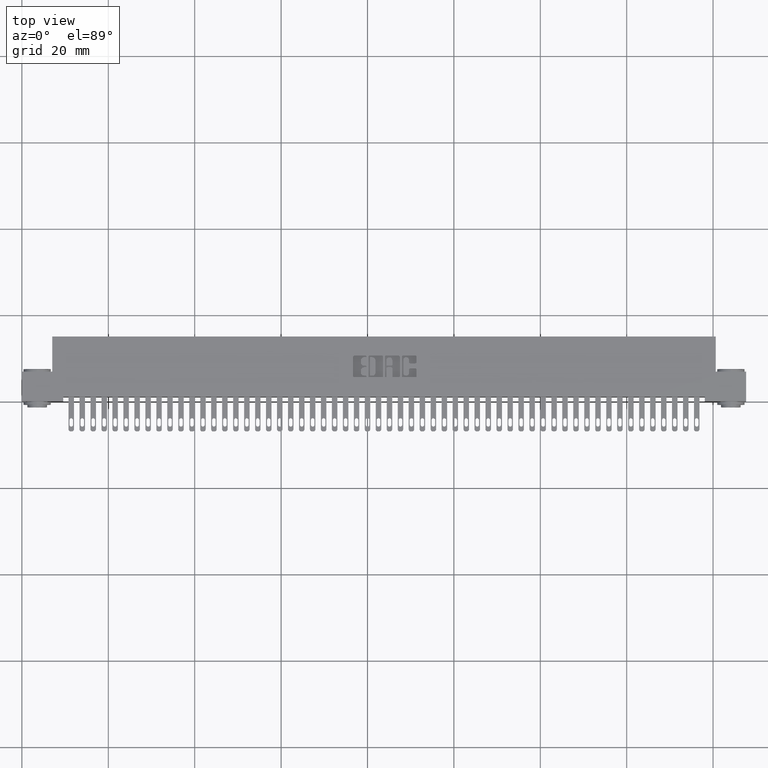
[diagram: clean part render]
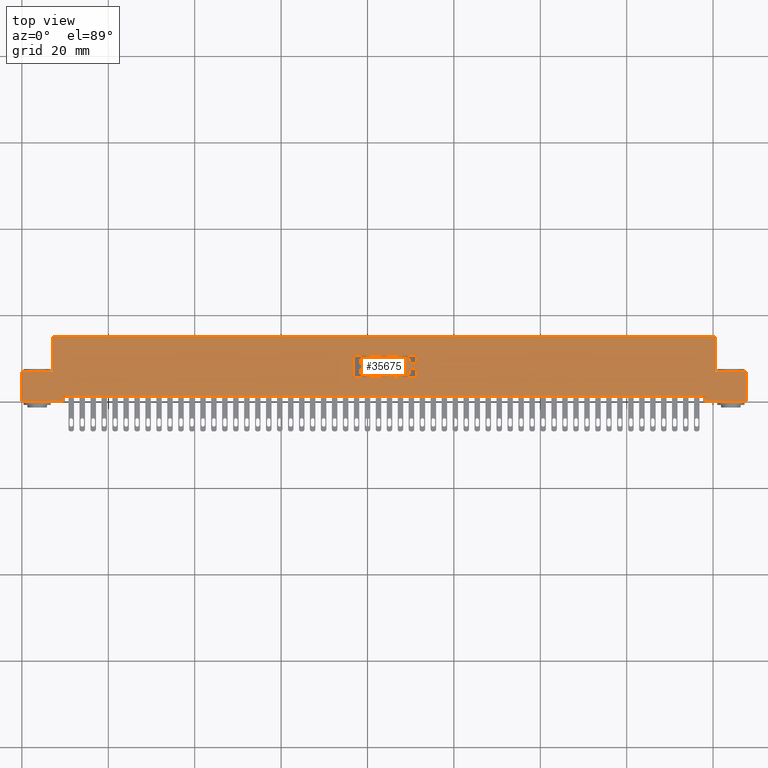
[diagram: same view with one face highlighted and labeled with its STEP entity id]
A machine part, top view. The second image highlights one B-rep face of the part: STEP entity #35675.
In plain terms, the highlighted planar face has unit normal (0, 0, -1).
Its self-contained STEP definition (entity closure, byte-faithful):
#32 = EDGE_CURVE ( 'NONE', #10878, #31877, #9913, .T. ) ;
#102 = CIRCLE ( 'NONE', #4530, 0.009815670203803066700 ) ;
#125 = CARTESIAN_POINT ( 'NONE',  ( -0.0000000000000000000, 0.2168432979619834600, 0.0000000000000000000 ) ) ;
#161 = VERTEX_POINT ( 'NONE', #7046 ) ;
#219 = CIRCLE ( 'NONE', #21924, 0.03141014465217440600 ) ;
#317 = AXIS2_PLACEMENT_3D ( 'NONE', #29773, #13194, #32537 ) ;
#363 = VERTEX_POINT ( 'NONE', #33381 ) ;
#391 = VECTOR ( 'NONE', #15224, 39.37007874015748100 ) ;
#439 = DIRECTION ( 'NONE',  ( -0.0000000000000000000, 0.0000000000000000000, 1.000000000000000000 ) ) ;
#461 = EDGE_CURVE ( 'NONE', #14462, #21891, #18146, .T. ) ;
#507 = EDGE_CURVE ( 'NONE', #5336, #21130, #16382, .T. ) ;
#676 = EDGE_CURVE ( 'NONE', #4527, #28101, #18547, .T. ) ;
#698 = LINE ( 'NONE', #10340, #21822 ) ;
#708 = DIRECTION ( 'NONE',  ( 1.000000000000000000, 0.0000000000000000000, 0.0000000000000000000 ) ) ;
#750 = DIRECTION ( 'NONE',  ( 1.000000000000000000, 0.0000000000000000000, 0.0000000000000000000 ) ) ;
#784 = VERTEX_POINT ( 'NONE', #8437 ) ;
#785 = DIRECTION ( 'NONE',  ( -0.0000000000000000000, 0.0000000000000000000, 1.000000000000000000 ) ) ;
#864 = ORIENTED_EDGE ( 'NONE', *, *, #507, .F. ) ;
#868 = VECTOR ( 'NONE', #28849, 39.37007874015748100 ) ;
#938 = DIRECTION ( 'NONE',  ( 1.000000000000000000, 0.0000000000000000000, 0.0000000000000000000 ) ) ;
#950 = CARTESIAN_POINT ( 'NONE',  ( -1.562019070573073200E-015, 0.2168432979619634200, 0.0000000000000000000 ) ) ;
#972 = CARTESIAN_POINT ( 'NONE',  ( 3.281595618367863000, 0.2168432979619834600, 0.0000000000000000000 ) ) ;
#1132 = LINE ( 'NONE', #17763, #21409 ) ;
#1137 = CARTESIAN_POINT ( 'NONE',  ( 3.318404381632128700, 0.4131567020380068100, 0.0000000000000000000 ) ) ;
#1193 = VERTEX_POINT ( 'NONE', #25974 ) ;
#1197 = DIRECTION ( 'NONE',  ( -0.0000000000000000000, 0.0000000000000000000, 1.000000000000000000 ) ) ;
#1198 = CIRCLE ( 'NONE', #7823, 0.009815670203787768200 ) ;
#1279 = AXIS2_PLACEMENT_3D ( 'NONE', #9189, #28533, #11956 ) ;
#1466 = ORIENTED_EDGE ( 'NONE', *, *, #20374, .F. ) ;
#1611 = EDGE_CURVE ( 'NONE', #2077, #9539, #11955, .T. ) ;
#1721 = VECTOR ( 'NONE', #22898, 39.37007874015748100 ) ;
#1754 = CARTESIAN_POINT ( 'NONE',  ( 3.088226915352910900, 0.3680046191005200700, 0.0000000000000000000 ) ) ;
#1900 = AXIS2_PLACEMENT_3D ( 'NONE', #3513, #22822, #6262 ) ;
#2025 = VERTEX_POINT ( 'NONE', #9933 ) ;
#2077 = VERTEX_POINT ( 'NONE', #4045 ) ;
#2271 = CARTESIAN_POINT ( 'NONE',  ( 3.308588711428332100, 0.0000000000000000000, 0.0000000000000000000 ) ) ;
#2274 = CARTESIAN_POINT ( 'NONE',  ( 3.119637060005085300, 0.3532811137948586000, 0.0000000000000000000 ) ) ;
#2289 = ORIENTED_EDGE ( 'NONE', *, *, #4653, .F. ) ;
#2318 = ORIENTED_EDGE ( 'NONE', *, *, #18451, .F. ) ;
#2352 = CARTESIAN_POINT ( 'NONE',  ( 3.586862961706168000, 0.3439562271012338000, 0.0000000000000000000 ) ) ;
#2528 = LINE ( 'NONE', #24207, #30997 ) ;
#2551 = ORIENTED_EDGE ( 'NONE', *, *, #12868, .T. ) ;
#2573 = EDGE_CURVE ( 'NONE', #30370, #4404, #23994, .T. ) ;
#2687 = DIRECTION ( 'NONE',  ( -1.000000000000000000, -1.189163988687022500E-013, 0.0000000000000000000 ) ) ;
#2701 = FACE_BOUND ( 'NONE', #27532, .T. ) ;
#2705 = DIRECTION ( 'NONE',  ( 0.0000000000000000000, 1.000000000000000000, -0.0000000000000000000 ) ) ;
#2757 = AXIS2_PLACEMENT_3D ( 'NONE', #27727, #11144, #30500 ) ;
#2798 = CARTESIAN_POINT ( 'NONE',  ( 3.537293827176968300, 0.2963502266127577800, 0.0000000000000000000 ) ) ;
#2815 = VECTOR ( 'NONE', #23390, 39.37007874015748100 ) ;
#2922 = CARTESIAN_POINT ( 'NONE',  ( 0.0000000000000000000, 0.5899999999999999700, 0.0000000000000000000 ) ) ;
#2934 = VECTOR ( 'NONE', #19479, 39.37007874015748100 ) ;
#2988 = EDGE_CURVE ( 'NONE', #19887, #5496, #16621, .T. ) ;
#3005 = ORIENTED_EDGE ( 'NONE', *, *, #5965, .F. ) ;
#3093 = LINE ( 'NONE', #25655, #9511 ) ;
#3228 = CIRCLE ( 'NONE', #6939, 0.009815670203805252500 ) ;
#3267 = LINE ( 'NONE', #4509, #17962 ) ;
#3364 = AXIS2_PLACEMENT_3D ( 'NONE', #30779, #14215, #33551 ) ;
#3429 = VECTOR ( 'NONE', #28614, 39.37007874015748100 ) ;
#3473 = AXIS2_PLACEMENT_3D ( 'NONE', #15401, #15333, #15291 ) ;
#3513 = CARTESIAN_POINT ( 'NONE',  ( 3.434229290037011900, 0.2266589681657811300, 0.0000000000000000000 ) ) ;
#3532 = CARTESIAN_POINT ( 'NONE',  ( 3.434229290037015000, 0.4131567020380068100, 0.0000000000000000000 ) ) ;
#3649 = EDGE_CURVE ( 'NONE', #2025, #18570, #30842, .T. ) ;
#3657 = LINE ( 'NONE', #24203, #2815 ) ;
#3677 = DIRECTION ( 'NONE',  ( -0.0000000000000000000, 0.0000000000000000000, 1.000000000000000000 ) ) ;
#3690 = CIRCLE ( 'NONE', #21292, 0.006870969142663458500 ) ;
#3697 = EDGE_CURVE ( 'NONE', #12853, #17395, #20905, .T. ) ;
#3736 = CARTESIAN_POINT ( 'NONE',  ( 3.365028815100189300, 0.3081290308573500500, 0.0000000000000000000 ) ) ;
#3788 = CARTESIAN_POINT ( 'NONE',  ( 0.0000000000000000000, 0.0000000000000000000, 0.0000000000000000000 ) ) ;
#3810 = LINE ( 'NONE', #17214, #24962 ) ;
#3931 = CARTESIAN_POINT ( 'NONE',  ( 3.155955039759170200, 0.2266589681657902000, 0.0000000000000000000 ) ) ;
#3941 = CIRCLE ( 'NONE', #7260, 0.009815670203840767500 ) ;
#3977 = VERTEX_POINT ( 'NONE', #11832 ) ;
#3995 = CARTESIAN_POINT ( 'NONE',  ( 0.0000000000000000000, 0.0000000000000000000, 0.0000000000000000000 ) ) ;
#4045 = CARTESIAN_POINT ( 'NONE',  ( 3.474964321382819900, 0.2568421540424532500, 0.0000000000000000000 ) ) ;
#4111 = VECTOR ( 'NONE', #20906, 39.37007874015748100 ) ;
#4168 = VECTOR ( 'NONE', #5306, 39.37007874015748100 ) ;
#4239 = CARTESIAN_POINT ( 'NONE',  ( -2.134256245050205600E-018, 0.2699999999999999600, 0.0000000000000000000 ) ) ;
#4311 = VERTEX_POINT ( 'NONE', #27571 ) ;
#4331 = VECTOR ( 'NONE', #6753, 39.37007874015748100 ) ;
#4400 = CARTESIAN_POINT ( 'NONE',  ( 3.586862961706169800, 0.4131567020380512700, 0.0000000000000000000 ) ) ;
#4404 = VERTEX_POINT ( 'NONE', #17977 ) ;
#4509 = CARTESIAN_POINT ( 'NONE',  ( 3.474964321382819900, 0.0000000000000000000, 0.0000000000000000000 ) ) ;
#4527 = VERTEX_POINT ( 'NONE', #35201 ) ;
#4530 = AXIS2_PLACEMENT_3D ( 'NONE', #17723, #1197, #20468 ) ;
#4611 = ORIENTED_EDGE ( 'NONE', *, *, #9172, .F. ) ;
#4633 = CARTESIAN_POINT ( 'NONE',  ( 3.155955039759170200, 0.4033410318342103800, 0.0000000000000000000 ) ) ;
#4653 = EDGE_CURVE ( 'NONE', #26959, #23649, #15204, .T. ) ;
#4655 = ORIENTED_EDGE ( 'NONE', *, *, #7321, .F. ) ;
#4724 = ORIENTED_EDGE ( 'NONE', *, *, #7126, .F. ) ;
#4747 = AXIS2_PLACEMENT_3D ( 'NONE', #25888, #9298, #28648 ) ;
#4809 = EDGE_CURVE ( 'NONE', #18570, #34790, #16114, .T. ) ;
#4817 = VECTOR ( 'NONE', #18066, 39.37007874015748100 ) ;
#4928 = DIRECTION ( 'NONE',  ( -0.0000000000000000000, 0.0000000000000000000, 1.000000000000000000 ) ) ;
#5022 = DIRECTION ( 'NONE',  ( 0.0000000000000000000, 1.000000000000000000, -0.0000000000000000000 ) ) ;
#5024 = DIRECTION ( 'NONE',  ( 1.000000000000000000, 0.0000000000000000000, 0.0000000000000000000 ) ) ;
#5119 = EDGE_CURVE ( 'NONE', #18307, #19537, #5724, .T. ) ;
#5127 = ORIENTED_EDGE ( 'NONE', *, *, #32081, .F. ) ;
#5165 = AXIS2_PLACEMENT_3D ( 'NONE', #27286, #10685, #30035 ) ;
#5166 = CIRCLE ( 'NONE', #3364, 0.03141014465218205200 ) ;
#5206 = AXIS2_PLACEMENT_3D ( 'NONE', #9080, #7144, #6266 ) ;
#5257 = AXIS2_PLACEMENT_3D ( 'NONE', #24282, #31122, #9208 ) ;
#5306 = DIRECTION ( 'NONE',  ( 1.000000000000000000, 0.0000000000000000000, 0.0000000000000000000 ) ) ;
#5336 = VERTEX_POINT ( 'NONE', #4633 ) ;
#5339 = VECTOR ( 'NONE', #11493, 39.37007874015748100 ) ;
#5496 = VERTEX_POINT ( 'NONE', #32250 ) ;
#5499 = CIRCLE ( 'NONE', #1279, 0.009815670203805798900 ) ;
#5536 = ORIENTED_EDGE ( 'NONE', *, *, #33035, .T. ) ;
#5723 = ORIENTED_EDGE ( 'NONE', *, *, #20830, .F. ) ;
#5724 = LINE ( 'NONE', #19840, #19540 ) ;
#5786 = CARTESIAN_POINT ( 'NONE',  ( 3.332146319917451500, 0.3081290308573488800, 0.0000000000000000000 ) ) ;
#5900 = CARTESIAN_POINT ( 'NONE',  ( 3.365028815100189300, 0.2983133606535530700, 0.0000000000000000000 ) ) ;
#5965 = EDGE_CURVE ( 'NONE', #22378, #14290, #33047, .T. ) ;
#5996 = CARTESIAN_POINT ( 'NONE',  ( 3.028842110619939500, 0.4131567020380330100, 0.0000000000000000000 ) ) ;
#6128 = VECTOR ( 'NONE', #10914, 39.37007874015748100 ) ;
#6222 = CARTESIAN_POINT ( 'NONE',  ( -0.0000000000000000000, 0.2168432979619834600, 0.0000000000000000000 ) ) ;
#6262 = DIRECTION ( 'NONE',  ( 1.000000000000000000, 0.0000000000000000000, 0.0000000000000000000 ) ) ;
#6266 = DIRECTION ( 'NONE',  ( 1.000000000000000000, 0.0000000000000000000, 0.0000000000000000000 ) ) ;
#6296 = CARTESIAN_POINT ( 'NONE',  ( 3.461222383097459800, 0.4033410318342103800, 0.0000000000000000000 ) ) ;
#6316 = CIRCLE ( 'NONE', #27489, 0.009815670203796511200 ) ;
#6409 = CARTESIAN_POINT ( 'NONE',  ( 3.471038053301266600, 0.2266589681657902000, 0.0000000000000000000 ) ) ;
#6429 = VERTEX_POINT ( 'NONE', #2352 ) ;
#6535 = ORIENTED_EDGE ( 'NONE', *, *, #31876, .F. ) ;
#6638 = EDGE_CURVE ( 'NONE', #22788, #2025, #3690, .T. ) ;
#6718 = VERTEX_POINT ( 'NONE', #13065 ) ;
#6746 = DIRECTION ( 'NONE',  ( 0.0000000000000000000, -1.000000000000000000, 0.0000000000000000000 ) ) ;
#6753 = DIRECTION ( 'NONE',  ( 1.000000000000000000, 0.0000000000000000000, 0.0000000000000000000 ) ) ;
#6755 = ORIENTED_EDGE ( 'NONE', *, *, #34495, .F. ) ;
#6787 = ORIENTED_EDGE ( 'NONE', *, *, #20291, .F. ) ;
#6939 = AXIS2_PLACEMENT_3D ( 'NONE', #33994, #17435, #938 ) ;
#6949 = ORIENTED_EDGE ( 'NONE', *, *, #16211, .T. ) ;
#6959 = EDGE_CURVE ( 'NONE', #19537, #27947, #29172, .T. ) ;
#6991 = DIRECTION ( 'NONE',  ( 1.000000000000000000, 0.0000000000000000000, -6.123233995736768500E-017 ) ) ;
#6999 = CARTESIAN_POINT ( 'NONE',  ( 3.133133606535336600, 0.2237142671046482000, 0.0000000000000000000 ) ) ;
#7001 = VERTEX_POINT ( 'NONE', #28421 ) ;
#7046 = CARTESIAN_POINT ( 'NONE',  ( 3.308588711428332100, 0.2237142671046482000, 0.0000000000000000000 ) ) ;
#7126 = EDGE_CURVE ( 'NONE', #26998, #9539, #3657, .T. ) ;
#7134 = ORIENTED_EDGE ( 'NONE', *, *, #23135, .F. ) ;
#7144 = DIRECTION ( 'NONE',  ( -0.0000000000000000000, 0.0000000000000000000, 1.000000000000000000 ) ) ;
#7159 = CARTESIAN_POINT ( 'NONE',  ( 3.119637060005085300, 0.3218709691426841500, 0.0000000000000000000 ) ) ;
#7168 = CARTESIAN_POINT ( 'NONE',  ( 3.165770709963011200, 0.4033410318342103800, 0.0000000000000000000 ) ) ;
#7214 = CARTESIAN_POINT ( 'NONE',  ( 0.0000000000000000000, 0.5899999999999999700, 0.0000000000000000000 ) ) ;
#7260 = AXIS2_PLACEMENT_3D ( 'NONE', #7168, #26524, #9922 ) ;
#7300 = CARTESIAN_POINT ( 'NONE',  ( 3.444044960240807600, 0.4033410318342012200, 0.0000000000000000000 ) ) ;
#7321 = EDGE_CURVE ( 'NONE', #13120, #9375, #26993, .T. ) ;
#7329 = EDGE_CURVE ( 'NONE', #8424, #12466, #10506, .T. ) ;
#7473 = ORIENTED_EDGE ( 'NONE', *, *, #32, .T. ) ;
#7486 = CIRCLE ( 'NONE', #4747, 0.006870969142662365600 ) ;
#7711 = CARTESIAN_POINT ( 'NONE',  ( 3.461222383097459800, 0.2266589681657902000, 0.0000000000000000000 ) ) ;
#7758 = CARTESIAN_POINT ( 'NONE',  ( 3.291411288571670600, 0.4033410318342103800, 0.0000000000000000000 ) ) ;
#7823 = AXIS2_PLACEMENT_3D ( 'NONE', #17275, #785, #20038 ) ;
#7985 = DIRECTION ( 'NONE',  ( -1.000000000000000000, -3.530861605407645300E-014, 0.0000000000000000000 ) ) ;
#8091 = DIRECTION ( 'NONE',  ( -0.0000000000000000000, -1.000000000000000000, -0.0000000000000000000 ) ) ;
#8123 = VERTEX_POINT ( 'NONE', #33587 ) ;
#8139 = CARTESIAN_POINT ( 'NONE',  ( 6.600000000000001400, 0.2699999999999999600, 0.0000000000000000000 ) ) ;
#8148 = LINE ( 'NONE', #12162, #868 ) ;
#8338 = ORIENTED_EDGE ( 'NONE', *, *, #29607, .F. ) ;
#8424 = VERTEX_POINT ( 'NONE', #23052 ) ;
#8427 = VECTOR ( 'NONE', #30869, 39.37007874015748100 ) ;
#8437 = CARTESIAN_POINT ( 'NONE',  ( 3.133133606415415600, 0.2305852362473104800, 0.0000000000000000000 ) ) ;
#8461 = VECTOR ( 'NONE', #10088, 39.37007874015748100 ) ;
#8500 = VERTEX_POINT ( 'NONE', #19921 ) ;
#8510 = EDGE_LOOP ( 'NONE', ( #11552, #4655, #13904, #28275, #15279, #13867, #14077, #14744, #20942, #14926, #33336, #8675, #25556, #2289, #29128, #30847, #30904, #7134, #13311, #14073, #24804 ) ) ;
#8553 = CIRCLE ( 'NONE', #16193, 0.02625691779517394200 ) ;
#8557 = DIRECTION ( 'NONE',  ( 1.000000000000000000, 0.0000000000000000000, 0.0000000000000000000 ) ) ;
#8652 = DIRECTION ( 'NONE',  ( 1.000000000000000000, 0.0000000000000000000, 0.0000000000000000000 ) ) ;
#8675 = ORIENTED_EDGE ( 'NONE', *, *, #25261, .F. ) ;
#8717 = CARTESIAN_POINT ( 'NONE',  ( 3.374844485303986300, 0.0000000000000000000, 0.0000000000000000000 ) ) ;
#9009 = LINE ( 'NONE', #6222, #1721 ) ;
#9080 = CARTESIAN_POINT ( 'NONE',  ( 3.133133606535352600, 0.4062857328953865500, 0.0000000000000000000 ) ) ;
#9172 = EDGE_CURVE ( 'NONE', #1193, #8424, #3093, .T. ) ;
#9189 = CARTESIAN_POINT ( 'NONE',  ( 3.028842110619923500, 0.2266589681657902000, 0.0000000000000000000 ) ) ;
#9193 = DIRECTION ( 'NONE',  ( 1.000000000000000000, 0.0000000000000000000, 0.0000000000000000000 ) ) ;
#9208 = DIRECTION ( 'NONE',  ( 1.000000000000000000, 0.0000000000000000000, 0.0000000000000000000 ) ) ;
#9242 = CARTESIAN_POINT ( 'NONE',  ( 6.323000000000002200, 0.2699999999999999600, -7.573828129326808200E-016 ) ) ;
#9249 = ORIENTED_EDGE ( 'NONE', *, *, #24466, .F. ) ;
#9298 = DIRECTION ( 'NONE',  ( -0.0000000000000000000, 0.0000000000000000000, 1.000000000000000000 ) ) ;
#9375 = VERTEX_POINT ( 'NONE', #1754 ) ;
#9447 = CARTESIAN_POINT ( 'NONE',  ( 0.0000000000000000000, 0.3218709691426841500, 0.0000000000000000000 ) ) ;
#9511 = VECTOR ( 'NONE', #33991, 39.37007874015748100 ) ;
#9539 = VERTEX_POINT ( 'NONE', #18859 ) ;
#9555 = DIRECTION ( 'NONE',  ( -1.000000000000000000, 0.0000000000000000000, 0.0000000000000000000 ) ) ;
#9649 = EDGE_CURVE ( 'NONE', #32222, #19342, #16849, .T. ) ;
#9673 = ORIENTED_EDGE ( 'NONE', *, *, #17282, .T. ) ;
#9767 = DIRECTION ( 'NONE',  ( 1.000000000000000000, 0.0000000000000000000, 0.0000000000000000000 ) ) ;
#9882 = CARTESIAN_POINT ( 'NONE',  ( 3.028842110619939500, 0.4033410318342103800, 0.0000000000000000000 ) ) ;
#9904 = VECTOR ( 'NONE', #24265, 39.37007874015748100 ) ;
#9913 = LINE ( 'NONE', #31328, #30249 ) ;
#9918 = ORIENTED_EDGE ( 'NONE', *, *, #33356, .F. ) ;
#9922 = DIRECTION ( 'NONE',  ( 1.000000000000000000, 0.0000000000000000000, 0.0000000000000000000 ) ) ;
#9933 = CARTESIAN_POINT ( 'NONE',  ( 3.140004575677974400, 0.3150000000000206000, 0.0000000000000000000 ) ) ;
#9937 = CIRCLE ( 'NONE', #13054, 0.03141014465221592800 ) ;
#9980 = FACE_OUTER_BOUND ( 'NONE', #34735, .T. ) ;
#10054 = CARTESIAN_POINT ( 'NONE',  ( 6.600000000000001400, 0.0000000000000000000, 0.0000000000000000000 ) ) ;
#10061 = ORIENTED_EDGE ( 'NONE', *, *, #34014, .F. ) ;
#10088 = DIRECTION ( 'NONE',  ( -0.0000000000000000000, -1.000000000000000000, -0.0000000000000000000 ) ) ;
#10091 = AXIS2_PLACEMENT_3D ( 'NONE', #12446, #31769, #15227 ) ;
#10263 = ORIENTED_EDGE ( 'NONE', *, *, #14839, .F. ) ;
#10297 = DIRECTION ( 'NONE',  ( 0.0000000000000000000, -1.000000000000000000, 0.0000000000000000000 ) ) ;
#10326 = EDGE_CURVE ( 'NONE', #13761, #27235, #16365, .T. ) ;
#10340 = CARTESIAN_POINT ( 'NONE',  ( 3.596678631909941500, 0.0000000000000000000, 0.0000000000000000000 ) ) ;
#10506 = LINE ( 'NONE', #17102, #24354 ) ;
#10668 = ORIENTED_EDGE ( 'NONE', *, *, #7329, .F. ) ;
#10685 = DIRECTION ( 'NONE',  ( -0.0000000000000000000, 0.0000000000000000000, 1.000000000000000000 ) ) ;
#10873 = VERTEX_POINT ( 'NONE', #10054 ) ;
#10878 = VERTEX_POINT ( 'NONE', #7300 ) ;
#10914 = DIRECTION ( 'NONE',  ( 1.000000000000000000, 7.203446383881635600E-015, 0.0000000000000000000 ) ) ;
#10976 = VERTEX_POINT ( 'NONE', #7758 ) ;
#11134 = DIRECTION ( 'NONE',  ( -0.0000000000000000000, 0.0000000000000000000, 1.000000000000000000 ) ) ;
#11144 = DIRECTION ( 'NONE',  ( -0.0000000000000000000, 0.0000000000000000000, 1.000000000000000000 ) ) ;
#11181 = CARTESIAN_POINT ( 'NONE',  ( 3.133133606415389800, 0.3081290308573571000, 0.0000000000000000000 ) ) ;
#11334 = EDGE_CURVE ( 'NONE', #24079, #26959, #5499, .T. ) ;
#11343 = CARTESIAN_POINT ( 'NONE',  ( 3.374844485303986300, 0.2266589681657880900, 0.0000000000000000000 ) ) ;
#11493 = DIRECTION ( 'NONE',  ( 0.0000000000000000000, 1.000000000000000000, -0.0000000000000000000 ) ) ;
#11552 = ORIENTED_EDGE ( 'NONE', *, *, #27034, .T. ) ;
#11556 = EDGE_LOOP ( 'NONE', ( #9918, #10263, #11951, #13352, #15656, #26905, #31730, #4724, #6535, #9249, #3005, #18421, #22302, #22756, #30418, #31573, #23955, #35159, #19425, #12900 ) ) ;
#11636 = LINE ( 'NONE', #15956, #9904 ) ;
#11832 = CARTESIAN_POINT ( 'NONE',  ( 3.281595618367897600, 0.4131567020380512700, 0.0000000000000000000 ) ) ;
#11876 = DIRECTION ( 'NONE',  ( 1.000000000000000000, 0.0000000000000000000, 0.0000000000000000000 ) ) ;
#11951 = ORIENTED_EDGE ( 'NONE', *, *, #6959, .F. ) ;
#11955 = CIRCLE ( 'NONE', #22338, 0.02625691779518049900 ) ;
#11956 = DIRECTION ( 'NONE',  ( 1.000000000000000000, 0.0000000000000000000, 0.0000000000000000000 ) ) ;
#12020 = DIRECTION ( 'NONE',  ( -0.0000000000000000000, 1.000000000000000000, -0.0000000000000000000 ) ) ;
#12160 = CARTESIAN_POINT ( 'NONE',  ( 3.133133606535352600, 0.4131567020380330100, 0.0000000000000000000 ) ) ;
#12162 = CARTESIAN_POINT ( 'NONE',  ( 6.600000000000001400, 0.5899999999999999700, 0.0000000000000000000 ) ) ;
#12191 = EDGE_CURVE ( 'NONE', #12243, #13761, #20352, .T. ) ;
#12208 = DIRECTION ( 'NONE',  ( -0.0000000000000000000, 0.0000000000000000000, 1.000000000000000000 ) ) ;
#12242 = EDGE_CURVE ( 'NONE', #18221, #5336, #3941, .T. ) ;
#12243 = VERTEX_POINT ( 'NONE', #4400 ) ;
#12248 = CIRCLE ( 'NONE', #12278, 0.009815670203806891800 ) ;
#12278 = AXIS2_PLACEMENT_3D ( 'NONE', #33761, #17191, #708 ) ;
#12332 = DIRECTION ( 'NONE',  ( -0.0000000000000000000, 0.0000000000000000000, 1.000000000000000000 ) ) ;
#12364 = LINE ( 'NONE', #19055, #4168 ) ;
#12422 = CARTESIAN_POINT ( 'NONE',  ( 3.586862961706135200, 0.2266589681657902000, 0.0000000000000000000 ) ) ;
#12443 = CARTESIAN_POINT ( 'NONE',  ( -0.0000000000000000000, 0.3439562271012338600, 0.0000000000000000000 ) ) ;
#12446 = CARTESIAN_POINT ( 'NONE',  ( 3.434229290037012800, 0.4033410318342106600, 0.0000000000000000000 ) ) ;
#12466 = VERTEX_POINT ( 'NONE', #32751 ) ;
#12470 = EDGE_CURVE ( 'NONE', #27942, #15283, #18205, .T. ) ;
#12598 = AXIS2_PLACEMENT_3D ( 'NONE', #33808, #17240, #750 ) ;
#12681 = DIRECTION ( 'NONE',  ( 1.000000000000000000, 0.0000000000000000000, 0.0000000000000000000 ) ) ;
#12697 = LINE ( 'NONE', #31943, #19178 ) ;
#12727 = LINE ( 'NONE', #2271, #26591 ) ;
#12810 = CARTESIAN_POINT ( 'NONE',  ( 3.322330649713648200, 0.2237142671046482000, 0.0000000000000000000 ) ) ;
#12853 = VERTEX_POINT ( 'NONE', #1137 ) ;
#12868 = EDGE_CURVE ( 'NONE', #8500, #12466, #26386, .T. ) ;
#12900 = ORIENTED_EDGE ( 'NONE', *, *, #2988, .F. ) ;
#12902 = AXIS2_PLACEMENT_3D ( 'NONE', #15769, #35116, #18571 ) ;
#12971 = EDGE_CURVE ( 'NONE', #18860, #32088, #31961, .T. ) ;
#13017 = ORIENTED_EDGE ( 'NONE', *, *, #30251, .T. ) ;
#13054 = AXIS2_PLACEMENT_3D ( 'NONE', #30247, #13675, #33010 ) ;
#13065 = CARTESIAN_POINT ( 'NONE',  ( 3.133133606535352600, 0.3994147637527359900, 0.0000000000000000000 ) ) ;
#13081 = CARTESIAN_POINT ( 'NONE',  ( 3.308588711428332100, 0.4033410318342103800, 0.0000000000000000000 ) ) ;
#13107 = DIRECTION ( 'NONE',  ( 0.0000000000000000000, 1.000000000000000000, -0.0000000000000000000 ) ) ;
#13120 = VERTEX_POINT ( 'NONE', #29819 ) ;
#13192 = DIRECTION ( 'NONE',  ( 1.000000000000000000, 0.0000000000000000000, 0.0000000000000000000 ) ) ;
#13194 = DIRECTION ( 'NONE',  ( -0.0000000000000000000, 0.0000000000000000000, 1.000000000000000000 ) ) ;
#13311 = ORIENTED_EDGE ( 'NONE', *, *, #676, .F. ) ;
#13349 = EDGE_CURVE ( 'NONE', #32222, #28653, #5166, .T. ) ;
#13352 = ORIENTED_EDGE ( 'NONE', *, *, #5119, .F. ) ;
#13396 = EDGE_CURVE ( 'NONE', #26600, #31533, #18144, .T. ) ;
#13528 = VECTOR ( 'NONE', #27619, 39.37007874015748100 ) ;
#13656 = CARTESIAN_POINT ( 'NONE',  ( 3.586862961706135200, 0.2168432979619834600, 0.0000000000000000000 ) ) ;
#13675 = DIRECTION ( 'NONE',  ( -0.0000000000000000000, 0.0000000000000000000, 1.000000000000000000 ) ) ;
#13761 = VERTEX_POINT ( 'NONE', #18678 ) ;
#13867 = ORIENTED_EDGE ( 'NONE', *, *, #6638, .F. ) ;
#13904 = ORIENTED_EDGE ( 'NONE', *, *, #16502, .T. ) ;
#13996 = VERTEX_POINT ( 'NONE', #22403 ) ;
#14073 = ORIENTED_EDGE ( 'NONE', *, *, #16643, .F. ) ;
#14077 = ORIENTED_EDGE ( 'NONE', *, *, #15906, .F. ) ;
#14215 = DIRECTION ( 'NONE',  ( -0.0000000000000000000, 0.0000000000000000000, 1.000000000000000000 ) ) ;
#14290 = VERTEX_POINT ( 'NONE', #15129 ) ;
#14404 = CARTESIAN_POINT ( 'NONE',  ( 3.133133606415415600, 0.2168432979619859800, 0.0000000000000000000 ) ) ;
#14462 = VERTEX_POINT ( 'NONE', #13656 ) ;
#14486 = CARTESIAN_POINT ( 'NONE',  ( 3.444044960240807600, 0.2266589681657811300, 0.0000000000000000000 ) ) ;
#14544 = DIRECTION ( 'NONE',  ( 0.0000000000000000000, 1.000000000000000000, -0.0000000000000000000 ) ) ;
#14609 = ORIENTED_EDGE ( 'NONE', *, *, #22424, .T. ) ;
#14700 = ORIENTED_EDGE ( 'NONE', *, *, #16857, .F. ) ;
#14744 = ORIENTED_EDGE ( 'NONE', *, *, #23304, .T. ) ;
#14839 = EDGE_CURVE ( 'NONE', #27947, #6429, #15029, .T. ) ;
#14851 = CARTESIAN_POINT ( 'NONE',  ( 3.596678631909941500, 0.2865345564089706900, 0.0000000000000000000 ) ) ;
#14926 = ORIENTED_EDGE ( 'NONE', *, *, #13349, .T. ) ;
#15029 = LINE ( 'NONE', #12443, #391 ) ;
#15038 = AXIS2_PLACEMENT_3D ( 'NONE', #28943, #28698, #28690 ) ;
#15110 = VERTEX_POINT ( 'NONE', #27197 ) ;
#15129 = CARTESIAN_POINT ( 'NONE',  ( 3.586862961706157800, 0.2963502266127577800, 0.0000000000000000000 ) ) ;
#15204 = LINE ( 'NONE', #950, #6128 ) ;
#15224 = DIRECTION ( 'NONE',  ( 1.000000000000000000, 0.0000000000000000000, 0.0000000000000000000 ) ) ;
#15227 = DIRECTION ( 'NONE',  ( 1.000000000000000000, 0.0000000000000000000, 0.0000000000000000000 ) ) ;
#15267 = CARTESIAN_POINT ( 'NONE',  ( 0.0000000000000000000, 0.4131567020380512700, 0.0000000000000000000 ) ) ;
#15279 = ORIENTED_EDGE ( 'NONE', *, *, #3649, .F. ) ;
#15283 = VERTEX_POINT ( 'NONE', #5786 ) ;
#15291 = DIRECTION ( 'NONE',  ( 1.000000000000000000, 0.0000000000000000000, 0.0000000000000000000 ) ) ;
#15333 = DIRECTION ( 'NONE',  ( -0.0000000000000000000, 0.0000000000000000000, 1.000000000000000000 ) ) ;
#15334 = CARTESIAN_POINT ( 'NONE',  ( 3.019026440416116700, 0.4033410318342103800, 0.0000000000000000000 ) ) ;
#15370 = DIRECTION ( 'NONE',  ( -0.0000000000000000000, 0.0000000000000000000, 1.000000000000000000 ) ) ;
#15401 = CARTESIAN_POINT ( 'NONE',  ( 3.586862961706154700, 0.2865345564089706900, 0.0000000000000000000 ) ) ;
#15524 = DIRECTION ( 'NONE',  ( -0.0000000000000000000, 1.000000000000000000, -0.0000000000000000000 ) ) ;
#15656 = ORIENTED_EDGE ( 'NONE', *, *, #20605, .T. ) ;
#15769 = CARTESIAN_POINT ( 'NONE',  ( 3.281595618367829200, 0.4033410318342102200, 0.0000000000000000000 ) ) ;
#15817 = VERTEX_POINT ( 'NONE', #18717 ) ;
#15890 = ORIENTED_EDGE ( 'NONE', *, *, #13396, .F. ) ;
#15906 = EDGE_CURVE ( 'NONE', #27158, #22788, #12364, .T. ) ;
#15956 = CARTESIAN_POINT ( 'NONE',  ( 6.600000000000001400, 0.2699999999999999600, 0.0000000000000000000 ) ) ;
#15985 = VECTOR ( 'NONE', #2705, 39.37007874015748100 ) ;
#16026 = CARTESIAN_POINT ( 'NONE',  ( 3.434229290037011900, 0.2168432979619849000, 0.0000000000000000000 ) ) ;
#16114 = LINE ( 'NONE', #9447, #29938 ) ;
#16115 = CARTESIAN_POINT ( 'NONE',  ( 3.028842110619919500, 0.2168432979619852300, 0.0000000000000000000 ) ) ;
#16193 = AXIS2_PLACEMENT_3D ( 'NONE', #21473, #4928, #24227 ) ;
#16211 = EDGE_CURVE ( 'NONE', #363, #33856, #25262, .T. ) ;
#16312 = CARTESIAN_POINT ( 'NONE',  ( 6.223000000000003400, 0.04000000000000000100, -1.895600338963814900E-033 ) ) ;
#16334 = LINE ( 'NONE', #125, #31030 ) ;
#16365 = CIRCLE ( 'NONE', #5165, 0.009815670203841313900 ) ;
#16382 = LINE ( 'NONE', #18738, #30211 ) ;
#16502 = EDGE_CURVE ( 'NONE', #13120, #34790, #219, .T. ) ;
#16621 = LINE ( 'NONE', #33985, #30469 ) ;
#16643 = EDGE_CURVE ( 'NONE', #6718, #4527, #30846, .T. ) ;
#16654 = VERTEX_POINT ( 'NONE', #8139 ) ;
#16713 = CARTESIAN_POINT ( 'NONE',  ( 3.461222383097459800, 0.0000000000000000000, 0.0000000000000000000 ) ) ;
#16824 = DIRECTION ( 'NONE',  ( -0.0000000000000000000, -1.000000000000000000, -0.0000000000000000000 ) ) ;
#16849 = LINE ( 'NONE', #20808, #15985 ) ;
#16857 = EDGE_CURVE ( 'NONE', #161, #17130, #18315, .T. ) ;
#16924 = CARTESIAN_POINT ( 'NONE',  ( 3.318404381632128700, 0.4033410318342103800, 0.0000000000000000000 ) ) ;
#16981 = AXIS2_PLACEMENT_3D ( 'NONE', #12422, #12332, #8557 ) ;
#17102 = CARTESIAN_POINT ( 'NONE',  ( 0.3770000000000000600, 0.04000000000000000100, 0.0000000000000000000 ) ) ;
#17130 = VERTEX_POINT ( 'NONE', #12810 ) ;
#17191 = DIRECTION ( 'NONE',  ( -0.0000000000000000000, 0.0000000000000000000, 1.000000000000000000 ) ) ;
#17214 = CARTESIAN_POINT ( 'NONE',  ( 0.0000000000000000000, 0.5899999999999999700, 0.0000000000000000000 ) ) ;
#17240 = DIRECTION ( 'NONE',  ( -0.0000000000000000000, 0.0000000000000000000, 1.000000000000000000 ) ) ;
#17250 = DIRECTION ( 'NONE',  ( 0.0000000000000000000, 1.000000000000000000, -0.0000000000000000000 ) ) ;
#17252 = CARTESIAN_POINT ( 'NONE',  ( 3.019026440416116700, 0.2266589681657902000, 0.0000000000000000000 ) ) ;
#17275 = CARTESIAN_POINT ( 'NONE',  ( 3.537293827176968300, 0.2865345564089698500, 0.0000000000000000000 ) ) ;
#17282 = EDGE_CURVE ( 'NONE', #1193, #35708, #19121, .T. ) ;
#17366 = CARTESIAN_POINT ( 'NONE',  ( 3.471038053301266600, 0.2168432979619834600, 0.0000000000000000000 ) ) ;
#17395 = VERTEX_POINT ( 'NONE', #3532 ) ;
#17435 = DIRECTION ( 'NONE',  ( -0.0000000000000000000, 0.0000000000000000000, 1.000000000000000000 ) ) ;
#17606 = EDGE_CURVE ( 'NONE', #23649, #15817, #25160, .T. ) ;
#17723 = CARTESIAN_POINT ( 'NONE',  ( 3.384660155507789500, 0.2266589681657880900, 0.0000000000000000000 ) ) ;
#17763 = CARTESIAN_POINT ( 'NONE',  ( 3.322330649713648200, 0.0000000000000000000, 0.0000000000000000000 ) ) ;
#17831 = EDGE_CURVE ( 'NONE', #3977, #18221, #35542, .T. ) ;
#17912 = VECTOR ( 'NONE', #17250, 39.37007874015748100 ) ;
#17962 = VECTOR ( 'NONE', #32137, 39.37007874015748100 ) ;
#17964 = CARTESIAN_POINT ( 'NONE',  ( 3.088226915352910900, 0.0000000000000000000, 0.0000000000000000000 ) ) ;
#17977 = CARTESIAN_POINT ( 'NONE',  ( 3.384660155507787300, 0.2168432979619849000, 0.0000000000000000000 ) ) ;
#18023 = LINE ( 'NONE', #3788, #24476 ) ;
#18045 = EDGE_CURVE ( 'NONE', #26527, #27942, #21251, .T. ) ;
#18066 = DIRECTION ( 'NONE',  ( -1.000000000000000000, 0.0000000000000000000, 0.0000000000000000000 ) ) ;
#18144 = CIRCLE ( 'NONE', #12598, 0.009815670203806891800 ) ;
#18145 = CARTESIAN_POINT ( 'NONE',  ( 0.0000000000000000000, 0.2963502266127577800, 0.0000000000000000000 ) ) ;
#18146 = CIRCLE ( 'NONE', #16981, 0.009815670203806345400 ) ;
#18205 = LINE ( 'NONE', #21781, #26421 ) ;
#18208 = DIRECTION ( 'NONE',  ( -1.000000000000000000, 0.0000000000000000000, 0.0000000000000000000 ) ) ;
#18221 = VERTEX_POINT ( 'NONE', #25826 ) ;
#18234 = FACE_BOUND ( 'NONE', #11556, .T. ) ;
#18307 = VERTEX_POINT ( 'NONE', #26196 ) ;
#18315 = CIRCLE ( 'NONE', #24927, 0.006870969142657995000 ) ;
#18421 = ORIENTED_EDGE ( 'NONE', *, *, #22642, .F. ) ;
#18451 = EDGE_CURVE ( 'NONE', #10976, #3977, #29070, .T. ) ;
#18485 = VERTEX_POINT ( 'NONE', #13081 ) ;
#18547 = CIRCLE ( 'NONE', #5206, 0.006870969142648706400 ) ;
#18570 = VERTEX_POINT ( 'NONE', #18911 ) ;
#18571 = DIRECTION ( 'NONE',  ( 1.000000000000000000, 0.0000000000000000000, 0.0000000000000000000 ) ) ;
#18638 = CARTESIAN_POINT ( 'NONE',  ( 3.291411288571670600, 0.2266589681657902000, 0.0000000000000000000 ) ) ;
#18652 = AXIS2_PLACEMENT_3D ( 'NONE', #27717, #11134, #30490 ) ;
#18678 = CARTESIAN_POINT ( 'NONE',  ( 3.471038053301300800, 0.4131567020380512700, 0.0000000000000000000 ) ) ;
#18717 = CARTESIAN_POINT ( 'NONE',  ( 3.140004575677998800, 0.2237142671046482000, 0.0000000000000000000 ) ) ;
#18738 = CARTESIAN_POINT ( 'NONE',  ( 3.155955039759170200, 0.0000000000000000000, 0.0000000000000000000 ) ) ;
#18859 = CARTESIAN_POINT ( 'NONE',  ( 3.527478156973180100, 0.2568421540424532500, 0.0000000000000000000 ) ) ;
#18860 = VERTEX_POINT ( 'NONE', #5996 ) ;
#18876 = ORIENTED_EDGE ( 'NONE', *, *, #17831, .F. ) ;
#18911 = CARTESIAN_POINT ( 'NONE',  ( 3.133133606535310800, 0.3218709691426841500, 0.0000000000000000000 ) ) ;
#19055 = CARTESIAN_POINT ( 'NONE',  ( -0.0000000000000000000, 0.3081290308573571000, 0.0000000000000000000 ) ) ;
#19121 = LINE ( 'NONE', #16312, #25623 ) ;
#19131 = EDGE_CURVE ( 'NONE', #28218, #13996, #21221, .T. ) ;
#19158 = AXIS2_PLACEMENT_3D ( 'NONE', #5900, #25219, #8652 ) ;
#19178 = VECTOR ( 'NONE', #18208, 39.37007874015748100 ) ;
#19342 = VERTEX_POINT ( 'NONE', #30117 ) ;
#19419 = DIRECTION ( 'NONE',  ( 0.0000000000000000000, 0.0000000000000000000, -1.000000000000000000 ) ) ;
#19425 = ORIENTED_EDGE ( 'NONE', *, *, #27084, .F. ) ;
#19472 = AXIS2_PLACEMENT_3D ( 'NONE', #2922, #19419, #30549 ) ;
#19479 = DIRECTION ( 'NONE',  ( 0.0000000000000000000, -1.000000000000000000, 0.0000000000000000000 ) ) ;
#19537 = VERTEX_POINT ( 'NONE', #33746 ) ;
#19540 = VECTOR ( 'NONE', #19726, 39.37007874015748100 ) ;
#19602 = EDGE_CURVE ( 'NONE', #25569, #30154, #20310, .T. ) ;
#19706 = DIRECTION ( 'NONE',  ( 1.000000000000000000, 0.0000000000000000000, 0.0000000000000000000 ) ) ;
#19726 = DIRECTION ( 'NONE',  ( 0.0000000000000000000, -1.000000000000000000, 0.0000000000000000000 ) ) ;
#19840 = CARTESIAN_POINT ( 'NONE',  ( 3.527478156973167200, 0.0000000000000000000, 0.0000000000000000000 ) ) ;
#19887 = VERTEX_POINT ( 'NONE', #35175 ) ;
#19906 = ORIENTED_EDGE ( 'NONE', *, *, #12470, .T. ) ;
#19909 = EDGE_CURVE ( 'NONE', #363, #16654, #11636, .T. ) ;
#19921 = CARTESIAN_POINT ( 'NONE',  ( 0.0000000000000000000, 0.0000000000000000000, 0.0000000000000000000 ) ) ;
#19984 = DIRECTION ( 'NONE',  ( 1.000000000000000000, 0.0000000000000000000, 0.0000000000000000000 ) ) ;
#20021 = EDGE_LOOP ( 'NONE', ( #2318, #6787, #15890, #5723, #6755, #864, #28844, #18876 ) ) ;
#20038 = DIRECTION ( 'NONE',  ( 1.000000000000000000, 0.0000000000000000000, 0.0000000000000000000 ) ) ;
#20194 = CARTESIAN_POINT ( 'NONE',  ( 3.315459680570988600, 0.2237142671046482000, 0.0000000000000000000 ) ) ;
#20291 = EDGE_CURVE ( 'NONE', #31533, #10976, #25462, .T. ) ;
#20300 = ORIENTED_EDGE ( 'NONE', *, *, #21690, .T. ) ;
#20310 = CIRCLE ( 'NONE', #29390, 0.009815670203806891800 ) ;
#20352 = LINE ( 'NONE', #15267, #4817 ) ;
#20372 = DIRECTION ( 'NONE',  ( 1.000000000000000000, 0.0000000000000000000, 0.0000000000000000000 ) ) ;
#20374 = EDGE_CURVE ( 'NONE', #16654, #10873, #8148, .T. ) ;
#20468 = DIRECTION ( 'NONE',  ( 1.000000000000000000, 0.0000000000000000000, 0.0000000000000000000 ) ) ;
#20543 = DIRECTION ( 'NONE',  ( -0.0000000000000000000, 0.0000000000000000000, 1.000000000000000000 ) ) ;
#20570 = LINE ( 'NONE', #7214, #8461 ) ;
#20605 = EDGE_CURVE ( 'NONE', #18307, #15110, #8553, .T. ) ;
#20786 = ORIENTED_EDGE ( 'NONE', *, *, #19909, .F. ) ;
#20808 = CARTESIAN_POINT ( 'NONE',  ( 3.088226915352928700, 0.0000000000000000000, 0.0000000000000000000 ) ) ;
#20830 = EDGE_CURVE ( 'NONE', #7001, #26600, #16334, .T. ) ;
#20872 = CARTESIAN_POINT ( 'NONE',  ( 0.2770000000000000200, 0.2699999999999999600, -1.696135816819084800E-017 ) ) ;
#20905 = LINE ( 'NONE', #25306, #13528 ) ;
#20906 = DIRECTION ( 'NONE',  ( -1.000000000000000000, 0.0000000000000000000, 0.0000000000000000000 ) ) ;
#20942 = ORIENTED_EDGE ( 'NONE', *, *, #9649, .F. ) ;
#20991 = EDGE_CURVE ( 'NONE', #13996, #33856, #3810, .T. ) ;
#21130 = VERTEX_POINT ( 'NONE', #3931 ) ;
#21172 = CARTESIAN_POINT ( 'NONE',  ( 3.596678631909941500, 0.2266589681657832400, 0.0000000000000000000 ) ) ;
#21194 = CARTESIAN_POINT ( 'NONE',  ( 3.133133606535310800, 0.3150000000000206000, 0.0000000000000000000 ) ) ;
#21221 = LINE ( 'NONE', #26542, #35071 ) ;
#21249 = EDGE_CURVE ( 'NONE', #4311, #6718, #2528, .T. ) ;
#21251 = CIRCLE ( 'NONE', #19158, 0.009815670203797057700 ) ;
#21292 = AXIS2_PLACEMENT_3D ( 'NONE', #21194, #20543, #20372 ) ;
#21409 = VECTOR ( 'NONE', #6746, 39.37007874015748100 ) ;
#21467 = EDGE_CURVE ( 'NONE', #27235, #25569, #24930, .T. ) ;
#21473 = CARTESIAN_POINT ( 'NONE',  ( 3.501221239177993100, 0.3731578459575298800, 0.0000000000000000000 ) ) ;
#21572 = DIRECTION ( 'NONE',  ( -0.0000000000000000000, 0.0000000000000000000, 1.000000000000000000 ) ) ;
#21690 = EDGE_CURVE ( 'NONE', #35708, #10873, #18023, .T. ) ;
#21715 = AXIS2_PLACEMENT_3D ( 'NONE', #6999, #26361, #9767 ) ;
#21781 = CARTESIAN_POINT ( 'NONE',  ( -1.087960964565265200E-014, 0.3081290308572312000, 0.0000000000000000000 ) ) ;
#21822 = VECTOR ( 'NONE', #13107, 39.37007874015748100 ) ;
#21891 = VERTEX_POINT ( 'NONE', #21172 ) ;
#21924 = AXIS2_PLACEMENT_3D ( 'NONE', #2274, #21572, #5024 ) ;
#22052 = VERTEX_POINT ( 'NONE', #24535 ) ;
#22185 = DIRECTION ( 'NONE',  ( 1.000000000000000000, 0.0000000000000000000, 0.0000000000000000000 ) ) ;
#22205 = CIRCLE ( 'NONE', #317, 0.03141014465215637200 ) ;
#22302 = ORIENTED_EDGE ( 'NONE', *, *, #461, .F. ) ;
#22338 = AXIS2_PLACEMENT_3D ( 'NONE', #26918, #12208, #11876 ) ;
#22378 = VERTEX_POINT ( 'NONE', #14851 ) ;
#22403 = CARTESIAN_POINT ( 'NONE',  ( 0.2770000000000000200, 0.5899999999999999700, 0.0000000000000000000 ) ) ;
#22424 = EDGE_CURVE ( 'NONE', #8123, #17130, #1132, .T. ) ;
#22642 = EDGE_CURVE ( 'NONE', #21891, #22378, #698, .T. ) ;
#22756 = ORIENTED_EDGE ( 'NONE', *, *, #30728, .F. ) ;
#22788 = VERTEX_POINT ( 'NONE', #11181 ) ;
#22789 = CARTESIAN_POINT ( 'NONE',  ( 3.374844485303986300, 0.2983133606535436900, 0.0000000000000000000 ) ) ;
#22822 = DIRECTION ( 'NONE',  ( -0.0000000000000000000, 0.0000000000000000000, 1.000000000000000000 ) ) ;
#22898 = DIRECTION ( 'NONE',  ( 1.000000000000000000, 0.0000000000000000000, 0.0000000000000000000 ) ) ;
#22980 = DIRECTION ( 'NONE',  ( 1.000000000000000000, 0.0000000000000000000, 0.0000000000000000000 ) ) ;
#23040 = CARTESIAN_POINT ( 'NONE',  ( 3.537293827176978900, 0.3439562271012338600, 0.0000000000000000000 ) ) ;
#23052 = CARTESIAN_POINT ( 'NONE',  ( 0.3770000000000000600, 0.04000000000000000100, 0.0000000000000000000 ) ) ;
#23135 = EDGE_CURVE ( 'NONE', #28101, #18860, #12697, .T. ) ;
#23227 = ORIENTED_EDGE ( 'NONE', *, *, #19131, .F. ) ;
#23304 = EDGE_CURVE ( 'NONE', #27158, #19342, #22205, .T. ) ;
#23390 = DIRECTION ( 'NONE',  ( 0.0000000000000000000, -1.000000000000000000, 0.0000000000000000000 ) ) ;
#23572 = EDGE_CURVE ( 'NONE', #35170, #26527, #27385, .T. ) ;
#23649 = VERTEX_POINT ( 'NONE', #14404 ) ;
#23818 = FACE_BOUND ( 'NONE', #8510, .T. ) ;
#23955 = ORIENTED_EDGE ( 'NONE', *, *, #10326, .F. ) ;
#23994 = LINE ( 'NONE', #26922, #8427 ) ;
#24079 = VERTEX_POINT ( 'NONE', #17252 ) ;
#24203 = CARTESIAN_POINT ( 'NONE',  ( 3.527478156973180100, 0.0000000000000000000, 0.0000000000000000000 ) ) ;
#24207 = CARTESIAN_POINT ( 'NONE',  ( -0.0000000000000000000, 0.3994147637527359900, 0.0000000000000000000 ) ) ;
#24227 = DIRECTION ( 'NONE',  ( 1.000000000000000000, 0.0000000000000000000, 0.0000000000000000000 ) ) ;
#24265 = DIRECTION ( 'NONE',  ( 1.000000000000000000, -0.0000000000000000000, 2.734233981706436200E-015 ) ) ;
#24282 = CARTESIAN_POINT ( 'NONE',  ( 3.133133606535310800, 0.3150000000000206000, 0.0000000000000000000 ) ) ;
#24309 = DIRECTION ( 'NONE',  ( 0.0000000000000000000, -1.000000000000000000, 0.0000000000000000000 ) ) ;
#24354 = VECTOR ( 'NONE', #16824, 39.37007874015748100 ) ;
#24371 = CARTESIAN_POINT ( 'NONE',  ( 0.0000000000000000000, 0.4131567020380512700, 0.0000000000000000000 ) ) ;
#24378 = VECTOR ( 'NONE', #12020, 39.37007874015748100 ) ;
#24466 = EDGE_CURVE ( 'NONE', #14290, #24752, #26170, .T. ) ;
#24476 = VECTOR ( 'NONE', #25896, 39.37007874015748100 ) ;
#24481 = ORIENTED_EDGE ( 'NONE', *, *, #26620, .F. ) ;
#24535 = CARTESIAN_POINT ( 'NONE',  ( -2.134256245050205600E-018, 0.2699999999999999600, 0.0000000000000000000 ) ) ;
#24752 = VERTEX_POINT ( 'NONE', #2798 ) ;
#24804 = ORIENTED_EDGE ( 'NONE', *, *, #21249, .F. ) ;
#24927 = AXIS2_PLACEMENT_3D ( 'NONE', #20194, #3677, #22980 ) ;
#24930 = LINE ( 'NONE', #16713, #2934 ) ;
#24962 = VECTOR ( 'NONE', #19984, 39.37007874015748100 ) ;
#24981 = PLANE ( 'NONE',  #19472 ) ;
#25160 = CIRCLE ( 'NONE', #21715, 0.006870969142662365600 ) ;
#25219 = DIRECTION ( 'NONE',  ( -0.0000000000000000000, 0.0000000000000000000, 1.000000000000000000 ) ) ;
#25255 = CIRCLE ( 'NONE', #1900, 0.009815670203795964800 ) ;
#25261 = EDGE_CURVE ( 'NONE', #15817, #784, #7486, .T. ) ;
#25262 = LINE ( 'NONE', #9242, #24378 ) ;
#25306 = CARTESIAN_POINT ( 'NONE',  ( -0.0000000000000000000, 0.4131567020380068100, 0.0000000000000000000 ) ) ;
#25462 = LINE ( 'NONE', #34059, #3429 ) ;
#25556 = ORIENTED_EDGE ( 'NONE', *, *, #17606, .F. ) ;
#25569 = VERTEX_POINT ( 'NONE', #7711 ) ;
#25623 = VECTOR ( 'NONE', #8091, 39.37007874015748100 ) ;
#25655 = CARTESIAN_POINT ( 'NONE',  ( 0.3770000000000000600, 0.04000000000000000100, 0.0000000000000000000 ) ) ;
#25761 = DIRECTION ( 'NONE',  ( -0.0000000000000000000, 0.0000000000000000000, 1.000000000000000000 ) ) ;
#25826 = CARTESIAN_POINT ( 'NONE',  ( 3.165770709963011200, 0.4131567020380512700, 0.0000000000000000000 ) ) ;
#25888 = CARTESIAN_POINT ( 'NONE',  ( 3.133133606535336600, 0.2237142671046482000, 0.0000000000000000000 ) ) ;
#25896 = DIRECTION ( 'NONE',  ( 1.000000000000000000, 0.0000000000000000000, 0.0000000000000000000 ) ) ;
#25974 = CARTESIAN_POINT ( 'NONE',  ( 6.223000000000003400, 0.04000000000000000100, -1.895600338963814900E-033 ) ) ;
#26170 = LINE ( 'NONE', #18145, #4111 ) ;
#26196 = CARTESIAN_POINT ( 'NONE',  ( 3.527478156973167200, 0.3731578454992601800, 0.0000000000000000000 ) ) ;
#26361 = DIRECTION ( 'NONE',  ( -0.0000000000000000000, 0.0000000000000000000, 1.000000000000000000 ) ) ;
#26386 = LINE ( 'NONE', #3995, #4331 ) ;
#26421 = VECTOR ( 'NONE', #7985, 39.37007874015748100 ) ;
#26461 = VECTOR ( 'NONE', #2687, 39.37007874015748100 ) ;
#26524 = DIRECTION ( 'NONE',  ( -0.0000000000000000000, 0.0000000000000000000, 1.000000000000000000 ) ) ;
#26527 = VERTEX_POINT ( 'NONE', #22789 ) ;
#26542 = CARTESIAN_POINT ( 'NONE',  ( 0.2770000000000000200, 0.2699999999999999600, -1.696135816819084800E-017 ) ) ;
#26591 = VECTOR ( 'NONE', #5022, 39.37007874015748100 ) ;
#26600 = VERTEX_POINT ( 'NONE', #972 ) ;
#26620 = EDGE_CURVE ( 'NONE', #35170, #4404, #102, .T. ) ;
#26876 = EDGE_CURVE ( 'NONE', #32088, #24079, #35483, .T. ) ;
#26905 = ORIENTED_EDGE ( 'NONE', *, *, #33581, .F. ) ;
#26918 = CARTESIAN_POINT ( 'NONE',  ( 3.501221239177999800, 0.2568421540424532500, 0.0000000000000000000 ) ) ;
#26922 = CARTESIAN_POINT ( 'NONE',  ( 0.0000000000000000000, 0.2168432979619849000, 0.0000000000000000000 ) ) ;
#26959 = VERTEX_POINT ( 'NONE', #16115 ) ;
#26993 = LINE ( 'NONE', #17964, #17912 ) ;
#26998 = VERTEX_POINT ( 'NONE', #32776 ) ;
#27034 = EDGE_CURVE ( 'NONE', #4311, #9375, #9937, .T. ) ;
#27045 = CIRCLE ( 'NONE', #27332, 0.009815670203803066700 ) ;
#27084 = EDGE_CURVE ( 'NONE', #5496, #12243, #30275, .T. ) ;
#27158 = VERTEX_POINT ( 'NONE', #33498 ) ;
#27195 = DIRECTION ( 'NONE',  ( -1.000000000000000000, 0.0000000000000000000, 0.0000000000000000000 ) ) ;
#27197 = CARTESIAN_POINT ( 'NONE',  ( 3.474964321382819900, 0.3731578459575298800, 0.0000000000000000000 ) ) ;
#27235 = VERTEX_POINT ( 'NONE', #6296 ) ;
#27286 = CARTESIAN_POINT ( 'NONE',  ( 3.471038053301300800, 0.4033410318342103800, 0.0000000000000000000 ) ) ;
#27332 = AXIS2_PLACEMENT_3D ( 'NONE', #31902, #15370, #34715 ) ;
#27385 = LINE ( 'NONE', #8717, #5339 ) ;
#27489 = AXIS2_PLACEMENT_3D ( 'NONE', #16924, #439, #19706 ) ;
#27525 = CARTESIAN_POINT ( 'NONE',  ( -2.742036592677480600E-014, 0.2305852362469378900, 0.0000000000000000000 ) ) ;
#27532 = EDGE_LOOP ( 'NONE', ( #32115, #8338, #7473, #10061, #34293, #24481, #31042, #32076, #19906, #31453, #14609, #14700, #5536, #27741 ) ) ;
#27571 = CARTESIAN_POINT ( 'NONE',  ( 3.119637060005126600, 0.3994147637527359900, 0.0000000000000000000 ) ) ;
#27619 = DIRECTION ( 'NONE',  ( 1.000000000000000000, 0.0000000000000000000, 0.0000000000000000000 ) ) ;
#27717 = CARTESIAN_POINT ( 'NONE',  ( 3.586862961706133400, 0.4033410318342112200, 0.0000000000000000000 ) ) ;
#27727 = CARTESIAN_POINT ( 'NONE',  ( 3.133133606535352600, 0.4062857328953865500, 0.0000000000000000000 ) ) ;
#27741 = ORIENTED_EDGE ( 'NONE', *, *, #29368, .F. ) ;
#27942 = VERTEX_POINT ( 'NONE', #3736 ) ;
#27947 = VERTEX_POINT ( 'NONE', #23040 ) ;
#28101 = VERTEX_POINT ( 'NONE', #12160 ) ;
#28122 = VECTOR ( 'NONE', #10297, 39.37007874015748100 ) ;
#28218 = VERTEX_POINT ( 'NONE', #20872 ) ;
#28275 = ORIENTED_EDGE ( 'NONE', *, *, #4809, .F. ) ;
#28362 = VECTOR ( 'NONE', #6991, 39.37007874015748100 ) ;
#28421 = CARTESIAN_POINT ( 'NONE',  ( 3.165770709962977500, 0.2168432979619834600, 0.0000000000000000000 ) ) ;
#28533 = DIRECTION ( 'NONE',  ( -0.0000000000000000000, 0.0000000000000000000, 1.000000000000000000 ) ) ;
#28612 = DIRECTION ( 'NONE',  ( 0.0000000000000000000, -1.000000000000000000, 0.0000000000000000000 ) ) ;
#28614 = DIRECTION ( 'NONE',  ( 0.0000000000000000000, 1.000000000000000000, -0.0000000000000000000 ) ) ;
#28648 = DIRECTION ( 'NONE',  ( 1.000000000000000000, 0.0000000000000000000, 0.0000000000000000000 ) ) ;
#28653 = VERTEX_POINT ( 'NONE', #30866 ) ;
#28690 = DIRECTION ( 'NONE',  ( 1.000000000000000000, 0.0000000000000000000, 0.0000000000000000000 ) ) ;
#28698 = DIRECTION ( 'NONE',  ( -0.0000000000000000000, 0.0000000000000000000, 1.000000000000000000 ) ) ;
#28844 = ORIENTED_EDGE ( 'NONE', *, *, #12242, .F. ) ;
#28849 = DIRECTION ( 'NONE',  ( -0.0000000000000000000, -1.000000000000000000, -0.0000000000000000000 ) ) ;
#28943 = CARTESIAN_POINT ( 'NONE',  ( 3.537293827176978900, 0.3537718973050454900, 0.0000000000000000000 ) ) ;
#29070 = CIRCLE ( 'NONE', #12902, 0.009815670203841313900 ) ;
#29128 = ORIENTED_EDGE ( 'NONE', *, *, #11334, .F. ) ;
#29172 = CIRCLE ( 'NONE', #15038, 0.009815670203811809700 ) ;
#29240 = DIRECTION ( 'NONE',  ( -0.0000000000000000000, 0.0000000000000000000, 1.000000000000000000 ) ) ;
#29245 = LINE ( 'NONE', #4239, #28362 ) ;
#29368 = EDGE_CURVE ( 'NONE', #12853, #18485, #6316, .T. ) ;
#29390 = AXIS2_PLACEMENT_3D ( 'NONE', #6409, #25761, #9193 ) ;
#29607 = EDGE_CURVE ( 'NONE', #10878, #17395, #32664, .T. ) ;
#29773 = CARTESIAN_POINT ( 'NONE',  ( 3.119637060005085300, 0.2767188862052008000, 0.0000000000000000000 ) ) ;
#29819 = CARTESIAN_POINT ( 'NONE',  ( 3.088226915352910900, 0.3532811137948586000, 0.0000000000000000000 ) ) ;
#29938 = VECTOR ( 'NONE', #9555, 39.37007874015748100 ) ;
#30035 = DIRECTION ( 'NONE',  ( 1.000000000000000000, 0.0000000000000000000, 0.0000000000000000000 ) ) ;
#30117 = CARTESIAN_POINT ( 'NONE',  ( 3.088226915352928700, 0.2767188862052008000, 0.0000000000000000000 ) ) ;
#30154 = VERTEX_POINT ( 'NONE', #17366 ) ;
#30205 = CARTESIAN_POINT ( 'NONE',  ( 6.323000000000002200, 0.5899999999999999700, -7.573828129326808200E-016 ) ) ;
#30211 = VECTOR ( 'NONE', #24309, 39.37007874015748100 ) ;
#30247 = CARTESIAN_POINT ( 'NONE',  ( 3.119637060005126600, 0.3680046191005200700, 0.0000000000000000000 ) ) ;
#30249 = VECTOR ( 'NONE', #28612, 39.37007874015748100 ) ;
#30251 = EDGE_CURVE ( 'NONE', #22052, #8500, #20570, .T. ) ;
#30275 = CIRCLE ( 'NONE', #18652, 0.009815670203840221000 ) ;
#30370 = VERTEX_POINT ( 'NONE', #16026 ) ;
#30418 = ORIENTED_EDGE ( 'NONE', *, *, #19602, .F. ) ;
#30469 = VECTOR ( 'NONE', #14544, 39.37007874015748100 ) ;
#30490 = DIRECTION ( 'NONE',  ( 1.000000000000000000, 0.0000000000000000000, 0.0000000000000000000 ) ) ;
#30500 = DIRECTION ( 'NONE',  ( 1.000000000000000000, 0.0000000000000000000, 0.0000000000000000000 ) ) ;
#30549 = DIRECTION ( 'NONE',  ( -1.000000000000000000, 0.0000000000000000000, -0.0000000000000000000 ) ) ;
#30656 = AXIS2_PLACEMENT_3D ( 'NONE', #9882, #29240, #12681 ) ;
#30670 = CARTESIAN_POINT ( 'NONE',  ( 6.223000000000003400, 0.0000000000000000000, -1.895600338963814900E-033 ) ) ;
#30728 = EDGE_CURVE ( 'NONE', #30154, #14462, #9009, .T. ) ;
#30739 = ORIENTED_EDGE ( 'NONE', *, *, #20991, .F. ) ;
#30779 = CARTESIAN_POINT ( 'NONE',  ( 3.119637060005111100, 0.2619953808994906500, 0.0000000000000000000 ) ) ;
#30842 = CIRCLE ( 'NONE', #5257, 0.006870969142663458500 ) ;
#30846 = CIRCLE ( 'NONE', #2757, 0.006870969142648706400 ) ;
#30847 = ORIENTED_EDGE ( 'NONE', *, *, #26876, .F. ) ;
#30866 = CARTESIAN_POINT ( 'NONE',  ( 3.119637060005111100, 0.2305852362473088700, 0.0000000000000000000 ) ) ;
#30869 = DIRECTION ( 'NONE',  ( -1.000000000000000000, 0.0000000000000000000, 0.0000000000000000000 ) ) ;
#30904 = ORIENTED_EDGE ( 'NONE', *, *, #12971, .F. ) ;
#30997 = VECTOR ( 'NONE', #13192, 39.37007874015748100 ) ;
#31030 = VECTOR ( 'NONE', #22185, 39.37007874015748100 ) ;
#31042 = ORIENTED_EDGE ( 'NONE', *, *, #23572, .T. ) ;
#31122 = DIRECTION ( 'NONE',  ( -0.0000000000000000000, 0.0000000000000000000, 1.000000000000000000 ) ) ;
#31174 = FACE_BOUND ( 'NONE', #20021, .T. ) ;
#31328 = CARTESIAN_POINT ( 'NONE',  ( 3.444044960240807600, 0.0000000000000000000, 0.0000000000000000000 ) ) ;
#31453 = ORIENTED_EDGE ( 'NONE', *, *, #33524, .T. ) ;
#31533 = VERTEX_POINT ( 'NONE', #18638 ) ;
#31573 = ORIENTED_EDGE ( 'NONE', *, *, #21467, .F. ) ;
#31730 = ORIENTED_EDGE ( 'NONE', *, *, #1611, .T. ) ;
#31769 = DIRECTION ( 'NONE',  ( -0.0000000000000000000, 0.0000000000000000000, 1.000000000000000000 ) ) ;
#31876 = EDGE_CURVE ( 'NONE', #24752, #26998, #1198, .T. ) ;
#31877 = VERTEX_POINT ( 'NONE', #14486 ) ;
#31902 = CARTESIAN_POINT ( 'NONE',  ( 3.332146319917451500, 0.2983133606535458600, 0.0000000000000000000 ) ) ;
#31943 = CARTESIAN_POINT ( 'NONE',  ( 0.0000000000000000000, 0.4131567020380330100, 0.0000000000000000000 ) ) ;
#31961 = CIRCLE ( 'NONE', #30656, 0.009815670203822736800 ) ;
#32076 = ORIENTED_EDGE ( 'NONE', *, *, #18045, .T. ) ;
#32081 = EDGE_CURVE ( 'NONE', #22052, #28218, #29245, .T. ) ;
#32088 = VERTEX_POINT ( 'NONE', #15334 ) ;
#32115 = ORIENTED_EDGE ( 'NONE', *, *, #3697, .T. ) ;
#32137 = DIRECTION ( 'NONE',  ( 0.0000000000000000000, 1.000000000000000000, -0.0000000000000000000 ) ) ;
#32222 = VERTEX_POINT ( 'NONE', #35033 ) ;
#32250 = CARTESIAN_POINT ( 'NONE',  ( 3.596678631909973500, 0.4033410318341950600, 0.0000000000000000000 ) ) ;
#32537 = DIRECTION ( 'NONE',  ( 1.000000000000000000, 0.0000000000000000000, 0.0000000000000000000 ) ) ;
#32664 = CIRCLE ( 'NONE', #10091, 0.009815670203795418300 ) ;
#32751 = CARTESIAN_POINT ( 'NONE',  ( 0.3770000000000000600, 0.0000000000000000000, 0.0000000000000000000 ) ) ;
#32776 = CARTESIAN_POINT ( 'NONE',  ( 3.527478156973180100, 0.2865345564089689700, 0.0000000000000000000 ) ) ;
#33010 = DIRECTION ( 'NONE',  ( 1.000000000000000000, 0.0000000000000000000, 0.0000000000000000000 ) ) ;
#33035 = EDGE_CURVE ( 'NONE', #161, #18485, #12727, .T. ) ;
#33047 = CIRCLE ( 'NONE', #3473, 0.009815670203787221800 ) ;
#33336 = ORIENTED_EDGE ( 'NONE', *, *, #35604, .F. ) ;
#33356 = EDGE_CURVE ( 'NONE', #6429, #19887, #3228, .T. ) ;
#33381 = CARTESIAN_POINT ( 'NONE',  ( 6.323000000000002200, 0.2699999999999999600, -7.573828129326808200E-016 ) ) ;
#33498 = CARTESIAN_POINT ( 'NONE',  ( 3.119637060005085300, 0.3081290308573571000, 0.0000000000000000000 ) ) ;
#33524 = EDGE_CURVE ( 'NONE', #15283, #8123, #27045, .T. ) ;
#33551 = DIRECTION ( 'NONE',  ( 1.000000000000000000, 0.0000000000000000000, 0.0000000000000000000 ) ) ;
#33581 = EDGE_CURVE ( 'NONE', #2077, #15110, #3267, .T. ) ;
#33587 = CARTESIAN_POINT ( 'NONE',  ( 3.322330649713648200, 0.2983133606535458600, 0.0000000000000000000 ) ) ;
#33746 = CARTESIAN_POINT ( 'NONE',  ( 3.527478156973167200, 0.3537718973050454900, 0.0000000000000000000 ) ) ;
#33761 = CARTESIAN_POINT ( 'NONE',  ( 3.165770709962977500, 0.2266589681657902000, 0.0000000000000000000 ) ) ;
#33808 = CARTESIAN_POINT ( 'NONE',  ( 3.281595618367863000, 0.2266589681657902000, 0.0000000000000000000 ) ) ;
#33815 = VECTOR ( 'NONE', #27195, 39.37007874015748100 ) ;
#33856 = VERTEX_POINT ( 'NONE', #30205 ) ;
#33985 = CARTESIAN_POINT ( 'NONE',  ( 3.596678631909973500, 0.0000000000000000000, 0.0000000000000000000 ) ) ;
#33991 = DIRECTION ( 'NONE',  ( -1.000000000000000000, -0.0000000000000000000, 3.242559594532695500E-034 ) ) ;
#33994 = CARTESIAN_POINT ( 'NONE',  ( 3.586862961706168000, 0.3537718973050389400, 0.0000000000000000000 ) ) ;
#34014 = EDGE_CURVE ( 'NONE', #30370, #31877, #25255, .T. ) ;
#34059 = CARTESIAN_POINT ( 'NONE',  ( 3.291411288571670600, 0.0000000000000000000, 0.0000000000000000000 ) ) ;
#34293 = ORIENTED_EDGE ( 'NONE', *, *, #2573, .T. ) ;
#34495 = EDGE_CURVE ( 'NONE', #21130, #7001, #12248, .T. ) ;
#34672 = LINE ( 'NONE', #27525, #26461 ) ;
#34715 = DIRECTION ( 'NONE',  ( 1.000000000000000000, 0.0000000000000000000, 0.0000000000000000000 ) ) ;
#34735 = EDGE_LOOP ( 'NONE', ( #4611, #9673, #20300, #1466, #20786, #6949, #30739, #23227, #5127, #13017, #2551, #10668 ) ) ;
#34790 = VERTEX_POINT ( 'NONE', #7159 ) ;
#35033 = CARTESIAN_POINT ( 'NONE',  ( 3.088226915352928700, 0.2619953808994906500, 0.0000000000000000000 ) ) ;
#35071 = VECTOR ( 'NONE', #15524, 39.37007874015748100 ) ;
#35100 = CARTESIAN_POINT ( 'NONE',  ( 3.019026440416116700, 0.0000000000000000000, 0.0000000000000000000 ) ) ;
#35116 = DIRECTION ( 'NONE',  ( -0.0000000000000000000, 0.0000000000000000000, 1.000000000000000000 ) ) ;
#35159 = ORIENTED_EDGE ( 'NONE', *, *, #12191, .F. ) ;
#35170 = VERTEX_POINT ( 'NONE', #11343 ) ;
#35175 = CARTESIAN_POINT ( 'NONE',  ( 3.596678631909973500, 0.3537718973050389400, 0.0000000000000000000 ) ) ;
#35201 = CARTESIAN_POINT ( 'NONE',  ( 3.140004575678001100, 0.4062857328953865500, 0.0000000000000000000 ) ) ;
#35483 = LINE ( 'NONE', #35100, #28122 ) ;
#35542 = LINE ( 'NONE', #24371, #33815 ) ;
#35604 = EDGE_CURVE ( 'NONE', #784, #28653, #34672, .T. ) ;
#35675 = ADVANCED_FACE ( 'NONE', ( #18234, #23818, #9980, #31174, #2701 ), #24981, .F. ) ;
#35708 = VERTEX_POINT ( 'NONE', #30670 ) ;